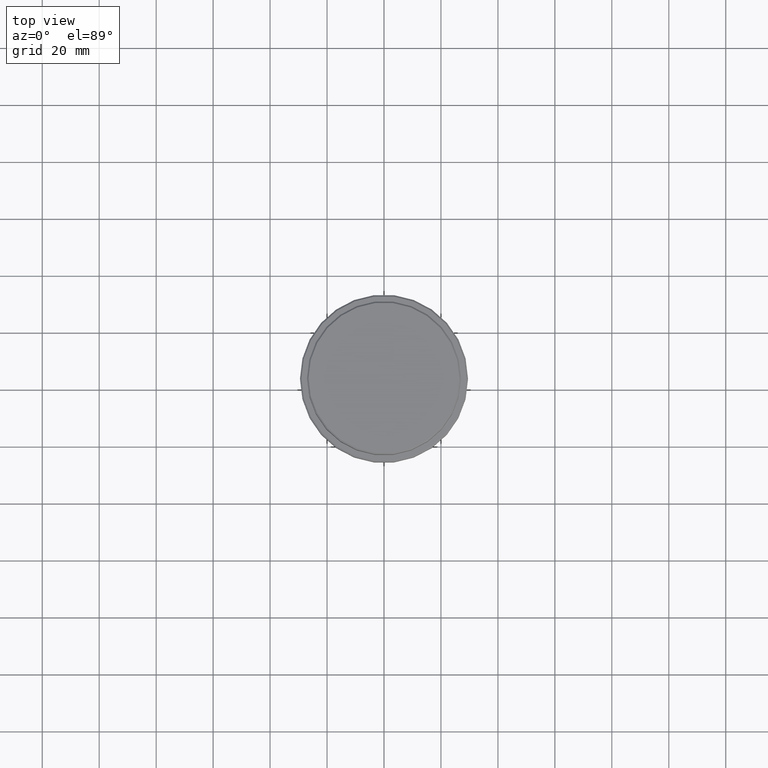
[diagram: clean part render]
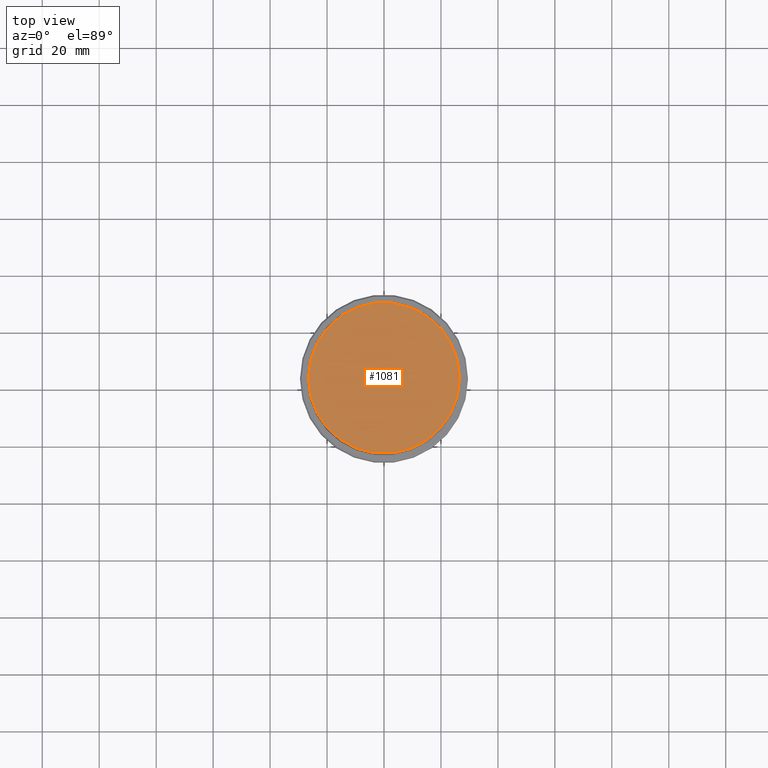
[diagram: same view with one face highlighted and labeled with its STEP entity id]
A machine part, top view. The second image highlights one B-rep face of the part: STEP entity #1081.
In plain terms, the highlighted planar face has unit normal (0, -0, 1).
Its self-contained STEP definition (entity closure, byte-faithful):
#3 = EDGE_CURVE ( 'NONE', #1116, #1261, #512, .T. ) ;
#10 = ORIENTED_EDGE ( 'NONE', *, *, #3, .T. ) ;
#40 = FACE_OUTER_BOUND ( 'NONE', #672, .T. ) ;
#49 = PLANE ( 'NONE',  #766 ) ;
#201 = ORIENTED_EDGE ( 'NONE', *, *, #598, .T. ) ;
#245 = DIRECTION ( 'NONE',  ( 0.000000000000000000, -0.000000000000000000, 1.000000000000000000 ) ) ;
#271 = DIRECTION ( 'NONE',  ( 1.000000000000000000, 0.000000000000000000, 0.000000000000000000 ) ) ;
#330 = DIRECTION ( 'NONE',  ( 1.000000000000000000, 0.000000000000000000, 0.000000000000000000 ) ) ;
#496 = CARTESIAN_POINT ( 'NONE',  ( 0.000000000000000000, 0.000000000000000000, 0.000000000000000000 ) ) ;
#512 = CIRCLE ( 'NONE', #600, 26.49999999999996803 ) ;
#543 = CARTESIAN_POINT ( 'NONE',  ( 0.000000000000000000, 0.000000000000000000, 0.000000000000000000 ) ) ;
#598 = EDGE_CURVE ( 'NONE', #1261, #1116, #1383, .T. ) ;
#600 = AXIS2_PLACEMENT_3D ( 'NONE', #543, #878, #330 ) ;
#672 = EDGE_LOOP ( 'NONE', ( #201, #10 ) ) ;
#682 = DIRECTION ( 'NONE',  ( 1.000000000000000000, 0.000000000000000000, 0.000000000000000000 ) ) ;
#763 = AXIS2_PLACEMENT_3D ( 'NONE', #496, #1253, #271 ) ;
#766 = AXIS2_PLACEMENT_3D ( 'NONE', #1035, #245, #682 ) ;
#878 = DIRECTION ( 'NONE',  ( -0.000000000000000000, -0.000000000000000000, 1.000000000000000000 ) ) ;
#1035 = CARTESIAN_POINT ( 'NONE',  ( 0.000000000000000000, 0.000000000000000000, 0.000000000000000000 ) ) ;
#1061 = CARTESIAN_POINT ( 'NONE',  ( -26.49999999999996803, 0.000000000000000000, 0.000000000000000000 ) ) ;
#1081 = ADVANCED_FACE ( 'NONE', ( #40 ), #49, .T. ) ;
#1116 = VERTEX_POINT ( 'NONE', #1366 ) ;
#1253 = DIRECTION ( 'NONE',  ( -0.000000000000000000, -0.000000000000000000, 1.000000000000000000 ) ) ;
#1261 = VERTEX_POINT ( 'NONE', #1061 ) ;
#1366 = CARTESIAN_POINT ( 'NONE',  ( 26.49999999999996803, 3.275930187719167974E-15, 0.000000000000000000 ) ) ;
#1383 = CIRCLE ( 'NONE', #763, 26.49999999999996803 ) ;